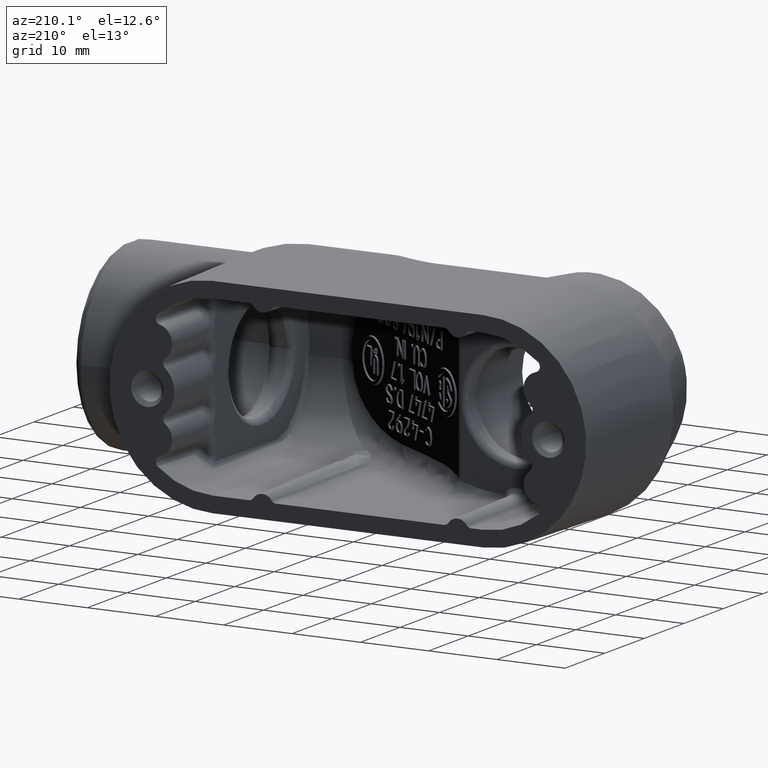
[diagram: clean part render]
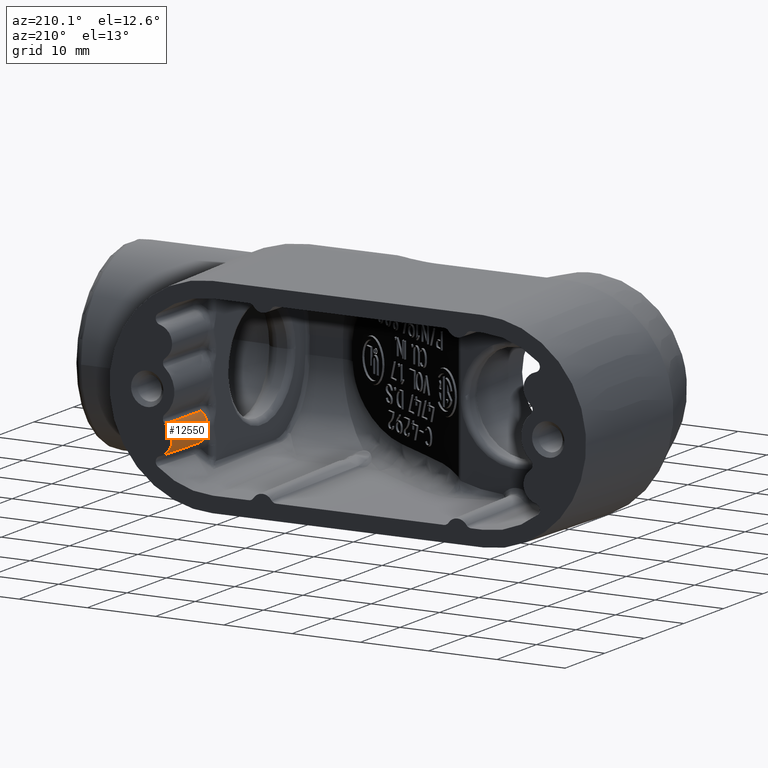
[diagram: same view with one face highlighted and labeled with its STEP entity id]
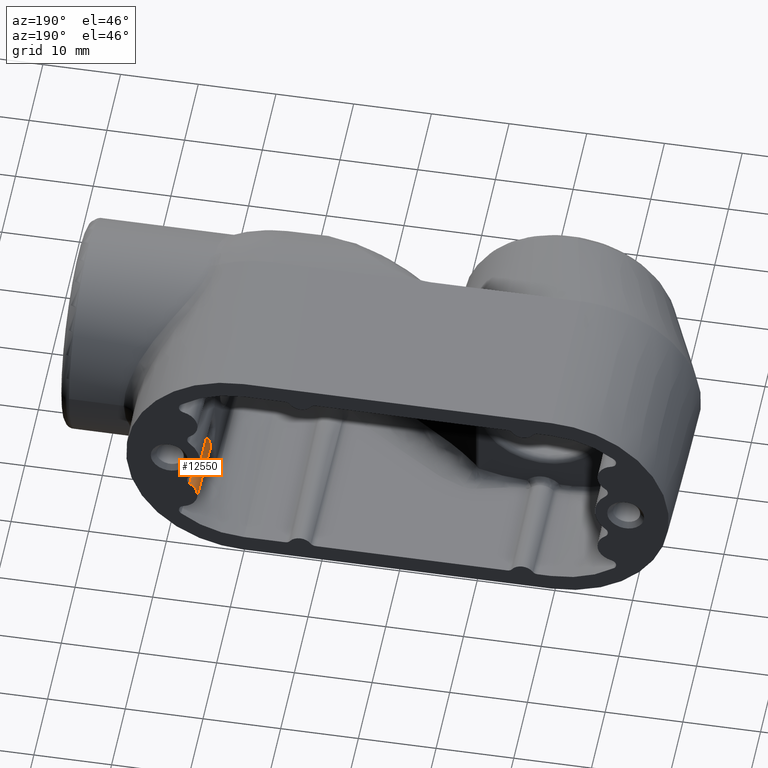
[diagram: same view with one face highlighted and labeled with its STEP entity id]
A machine part, auxiliary view. The second image highlights one B-rep face of the part: STEP entity #12550.
A second angle (auxiliary view) of the same face is appended — the face is thin or edge-on in the first view.
In plain terms, the highlighted conical surface has half-angle 1 deg.
Its self-contained STEP definition (entity closure, byte-faithful):
#45=CONICAL_SURFACE('',#13344,0.09375,0.0174532925199433);
#244=CIRCLE('',#13315,0.0997596983468097);
#264=CIRCLE('',#13345,0.09375);
#699=FACE_OUTER_BOUND('',#1497,.T.);
#1497=EDGE_LOOP('',(#8760,#8761,#8762,#8763));
#4075=B_SPLINE_CURVE_WITH_KNOTS('',3,(#21957,#21958,#21959,#21960),
 .UNSPECIFIED.,.F.,.F.,(4,4),(-0.954880848071723,-0.0797476205696486),
 .UNSPECIFIED.);
#4077=B_SPLINE_CURVE_WITH_KNOTS('',3,(#21994,#21995,#21996,#21997),
 .UNSPECIFIED.,.F.,.F.,(4,4),(0.0797244634124648,0.954568943687763),
 .UNSPECIFIED.);
#5247=VERTEX_POINT('',#21733);
#5248=VERTEX_POINT('',#21735);
#5264=VERTEX_POINT('',#21956);
#5265=VERTEX_POINT('',#21993);
#6606=EDGE_CURVE('',#5247,#5248,#244,.T.);
#6637=EDGE_CURVE('',#5248,#5264,#4075,.T.);
#6639=EDGE_CURVE('',#5265,#5247,#4077,.T.);
#6640=EDGE_CURVE('',#5264,#5265,#264,.T.);
#8760=ORIENTED_EDGE('',*,*,#6606,.F.);
#8761=ORIENTED_EDGE('',*,*,#6639,.F.);
#8762=ORIENTED_EDGE('',*,*,#6640,.F.);
#8763=ORIENTED_EDGE('',*,*,#6637,.F.);
#12550=ADVANCED_FACE('',(#699),#45,.T.);
#13315=AXIS2_PLACEMENT_3D('',#21736,#14043,#14044);
#13344=AXIS2_PLACEMENT_3D('',#21992,#14102,#14103);
#13345=AXIS2_PLACEMENT_3D('',#21998,#14104,#14105);
#14043=DIRECTION('center_axis',(0.,-1.,0.));
#14044=DIRECTION('ref_axis',(-0.986004846588839,0.,-0.166716653347291));
#14102=DIRECTION('center_axis',(0.,-1.,0.));
#14103=DIRECTION('ref_axis',(-0.982925268305514,0.,-0.184005208965764));
#14104=DIRECTION('center_axis',(0.,1.,0.));
#14105=DIRECTION('ref_axis',(1.,0.,0.));
#21733=CARTESIAN_POINT('',(1.04487364609998,0.499454612296391,-0.167028076949425));
#21735=CARTESIAN_POINT('',(1.07425128959414,0.499454612239807,-0.33933494192444));
#21736=CARTESIAN_POINT('Origin',(1.10698041455779,0.499454612298835,-0.245096935824079));
#21956=CARTESIAN_POINT('',(1.08431260834721,0.84374999998794,-0.3360652438312));
#21957=CARTESIAN_POINT('Ctrl Pts',(1.07425128959585,0.499454612239754,-0.339334941923941));
#21958=CARTESIAN_POINT('Ctrl Pts',(1.07756586791027,0.614224585067212,-0.33836540650803));
#21959=CARTESIAN_POINT('Ctrl Pts',(1.08091624959602,0.728990316836131,-0.337283321929497));
#21960=CARTESIAN_POINT('Ctrl Pts',(1.0843126083417,0.843749999989081,-0.336065243840792));
#21992=CARTESIAN_POINT('Origin',(1.10698041455779,0.84375,-0.245096935824079));
#21993=CARTESIAN_POINT('',(1.0529419083583,0.84374999998773,-0.16848817426375));
#21994=CARTESIAN_POINT('Ctrl Pts',(1.05294190835662,0.843749999987863,-0.168488174263259));
#21995=CARTESIAN_POINT('Ctrl Pts',(1.05020211198453,0.728987629322572,-0.167969380439546));
#21996=CARTESIAN_POINT('Ctrl Pts',(1.04751750533643,0.614222191254746,-0.167484656063013));
#21997=CARTESIAN_POINT('Ctrl Pts',(1.04487364610001,0.499454612295446,-0.167028076949431));
#21998=CARTESIAN_POINT('Origin',(1.10698041455779,0.84375,-0.245096935824079));